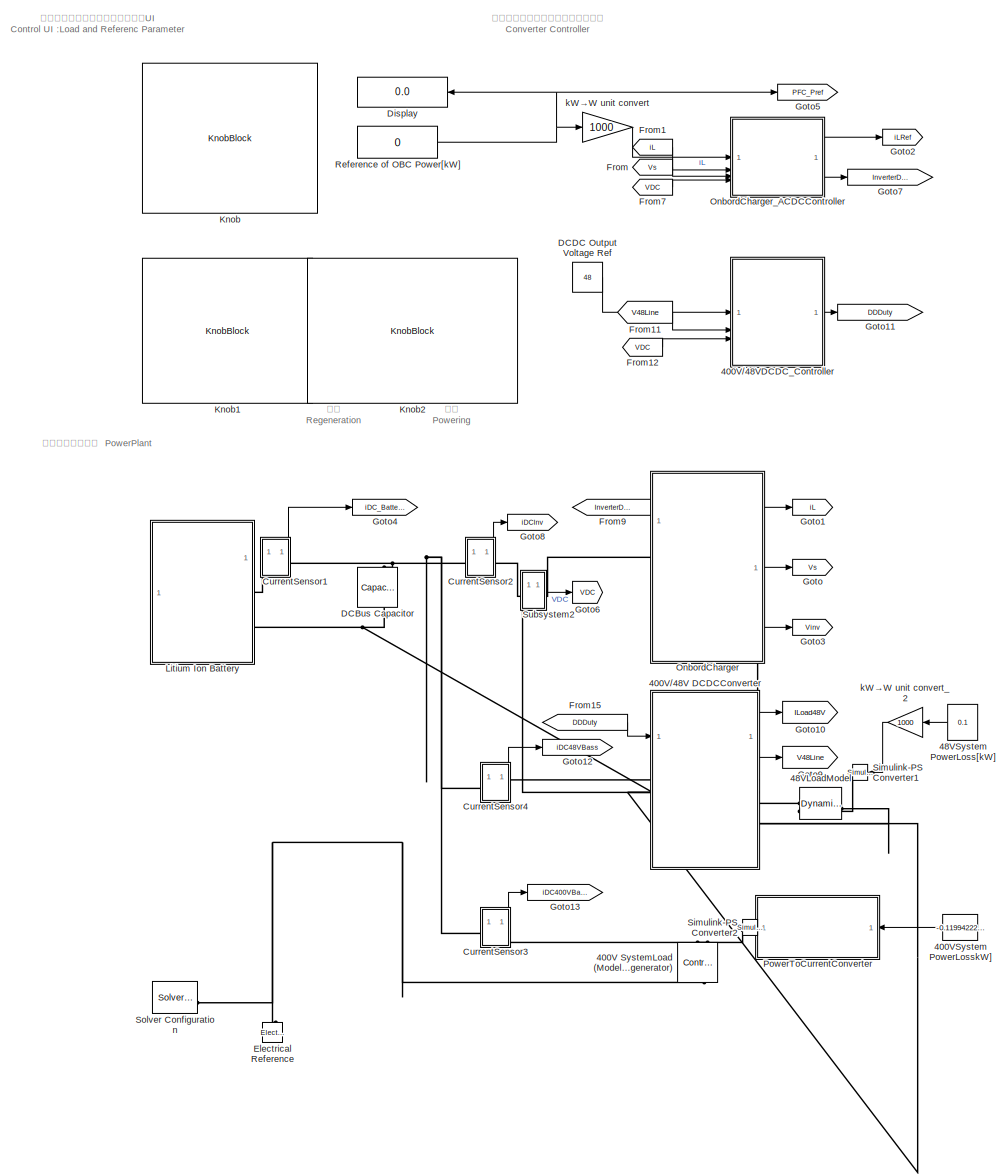
[diagram: root canvas - part 1/2, left side, full height]
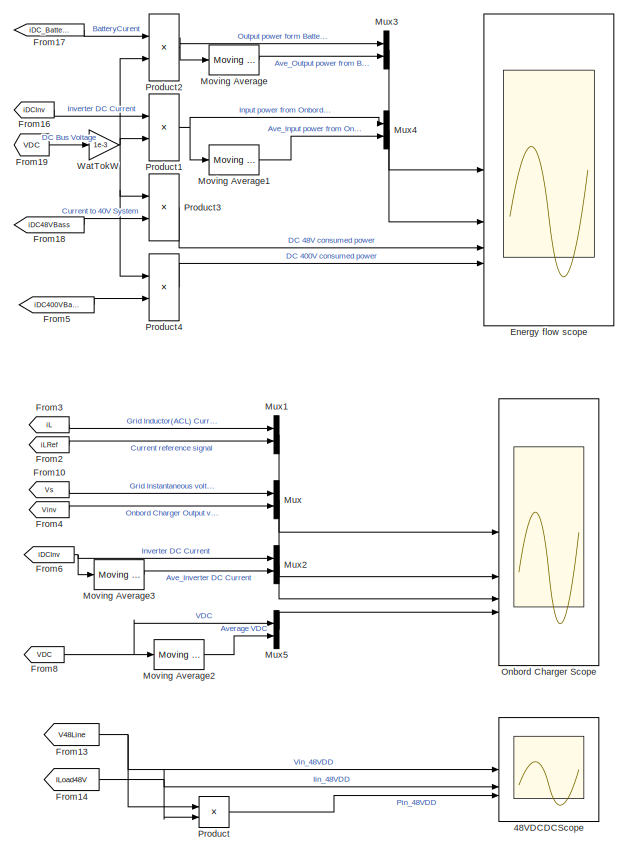
[diagram: root canvas - part 2/2, middle right region]
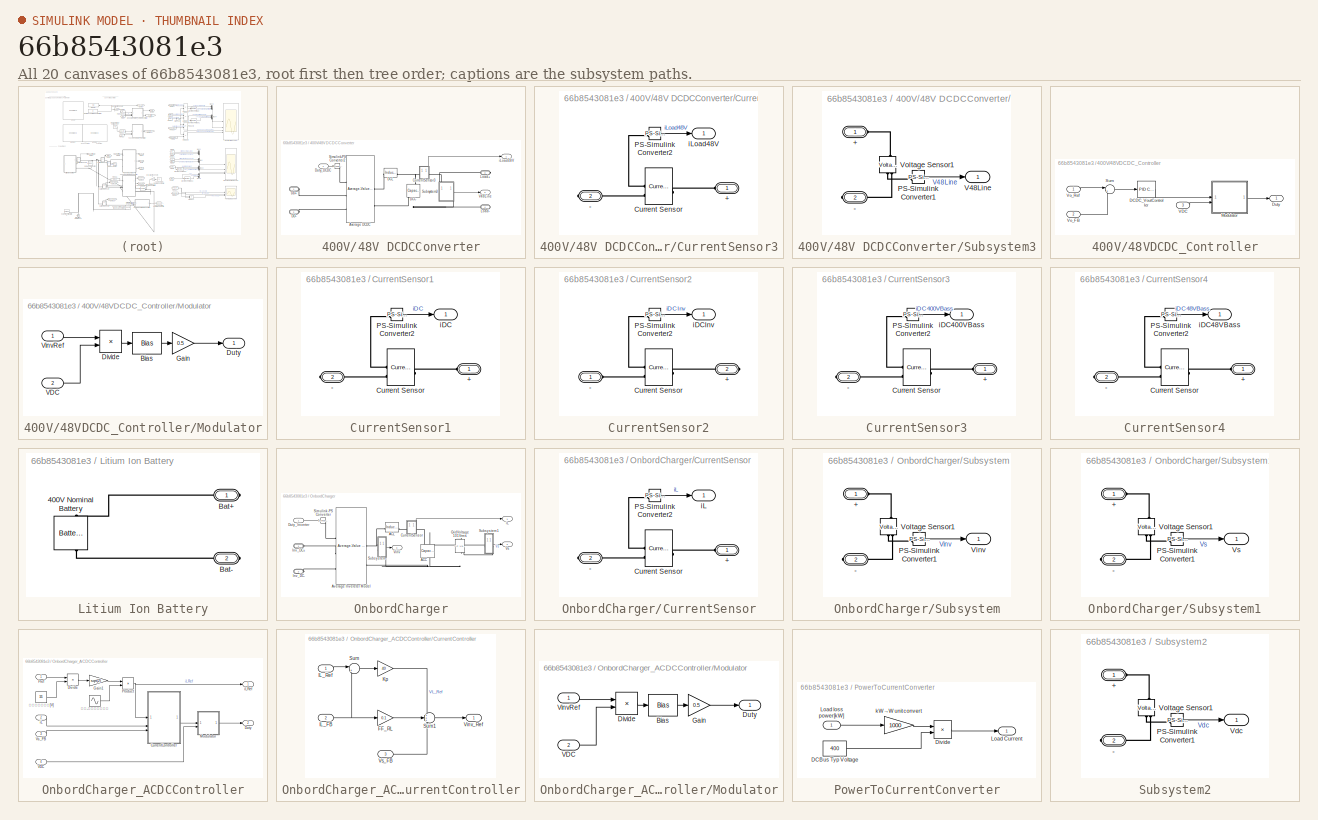
[diagram: thumbnail index - all 20 canvases of the model, root first then tree order]
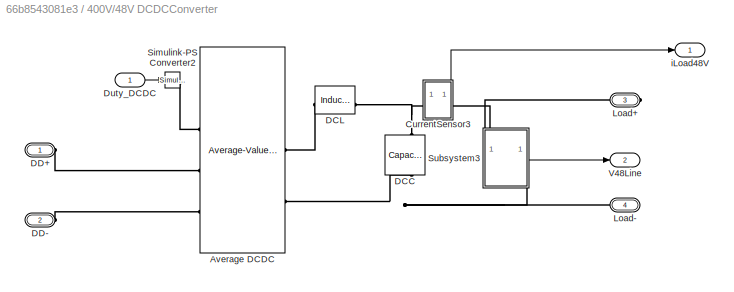
MODEL slx_66b8543081e3
KIND model
CONFIG AbsTol = 1e-3
CONFIG EnableMultiTasking = off
CONFIG FixedStep = auto
CONFIG MaxStep = 1e-3
CONFIG MinStep = auto
CONFIG RelTol = 1e-3
CONFIG SampleTimeConstraint = Unconstrained
CONFIG SolverName = ode23t
CONFIG StartTime = 0.0
CONFIG StopTime = 20
BLOCK [Reference] 400V SystemLoad (Modeling as current generator)  REF=fl_lib/Electrical/Electrical Sources/Controlled Current
Source
  NameLocation = left
  SourceBlock = fl_lib/Electrical/Electrical Sources/Controlled Current\nSource
  SourceType = Controlled Current\nSource
BLOCK [SubSystem] 400V//48V DCDCConverter
BLOCK [Reference] 400V//48V DCDCConverter/Average DCDC  REF=ee_lib/Semiconductors &
Converters/Converters/Average-Value
Chopper
  SourceBlock = ee_lib/Semiconductors &\nConverters/Converters/Average-Value\nChopper
  SourceType = Average-Value\nChopper
BLOCK [SubSystem] 400V//48V DCDCConverter/CurrentSensor3
  PortSchema = {"entries":[{"content":{"sides":[{"content":{"connectorIds":["LConn1"]},"type":"ConnectorPlacement.EquallySpacedRectSide","uuid":"7286f59e-cee0-499d-832c-cf6f33a1b017"},{"content":{"connectorIds":["RConn1"],"side":"RIGHT"},"type":"ConnectorPlacement.EquallySpacedRectSide","uuid":"6a983281-a6bc-4a57-a5ba-c4da9a8828f4"},{"content":{"connectorIds":["Out1"],"side":"TOP"},"type":"ConnectorPlacement.Equ...<+251ch>  <repeated x6 — deduplicated; at blocks: CurrentSensor3, CurrentSensor1, CurrentSensor2, CurrentSensor4, CurrentSensor>
BLOCK [PMIOPort] 400V//48V DCDCConverter/CurrentSensor3/+
  Side = Left
BLOCK [PMIOPort] 400V//48V DCDCConverter/CurrentSensor3/-
  Port = 2
  Side = Right
BLOCK [Reference] 400V//48V DCDCConverter/CurrentSensor3/Current Sensor  REF=fl_lib/Electrical/Electrical Sensors/Current Sensor
  NameLocation = top
  SourceBlock = fl_lib/Electrical/Electrical Sensors/Current Sensor
  SourceType = Current Sensor
BLOCK [Reference] 400V//48V DCDCConverter/CurrentSensor3/PS-Simulink Converter2  REF=nesl_utility/PS-Simulink
Converter
  SourceBlock = nesl_utility/PS-Simulink\nConverter
  SourceType = PS-Simulink\nConverter
BLOCK [Outport] 400V//48V DCDCConverter/CurrentSensor3/iLoad48V
BLOCK [Reference] 400V//48V DCDCConverter/DCC  REF=ee_lib/Passive/Capacitor
  NameLocation = left
  SourceBlock = ee_lib/Passive/Capacitor
  SourceType = Capacitor
BLOCK [Reference] 400V//48V DCDCConverter/DCL  REF=ee_lib/Passive/Inductor
  SourceBlock = ee_lib/Passive/Inductor
  SourceType = Inductor
BLOCK [PMIOPort] 400V//48V DCDCConverter/DD+
  Side = Left
BLOCK [PMIOPort] 400V//48V DCDCConverter/DD-
  Port = 2
  Side = Left
BLOCK [Inport] 400V//48V DCDCConverter/Duty_DCDC
BLOCK [PMIOPort] 400V//48V DCDCConverter/Load+
  NameLocation = top
  Port = 3
  Side = Right
BLOCK [PMIOPort] 400V//48V DCDCConverter/Load-
  NameLocation = top
  Port = 4
  Side = Right
BLOCK [Reference] 400V//48V DCDCConverter/Simulink-PS Converter2  REF=nesl_utility/Simulink-PS
Converter
  SourceBlock = nesl_utility/Simulink-PS\nConverter
  SourceType = Simulink-PS\nConverter
BLOCK [SubSystem] 400V//48V DCDCConverter/Subsystem3
  PortSchema = {"entries":[{"content":{"sides":[{"content":{"connectorIds":[]},"type":"ConnectorPlacement.EquallySpacedRectSide","uuid":"7286f59e-cee0-499d-832c-cf6f33a1b017"},{"content":{"connectorIds":["Out1"],"side":"RIGHT"},"type":"ConnectorPlacement.EquallySpacedRectSide","uuid":"6a983281-a6bc-4a57-a5ba-c4da9a8828f4"},{"content":{"connectorIds":["LConn1"],"side":"TOP"},"type":"ConnectorPlacement.EquallySpac...<+395ch>  <repeated x3 — deduplicated; at blocks: Subsystem3, Subsystem, Subsystem1>
BLOCK [PMIOPort] 400V//48V DCDCConverter/Subsystem3/+
  Side = Left
BLOCK [PMIOPort] 400V//48V DCDCConverter/Subsystem3/-
  NameLocation = top
  Port = 2
  Side = Right
BLOCK [Reference] 400V//48V DCDCConverter/Subsystem3/PS-Simulink Converter1  REF=nesl_utility/PS-Simulink
Converter
  SourceBlock = nesl_utility/PS-Simulink\nConverter
  SourceType = PS-Simulink\nConverter
BLOCK [Outport] 400V//48V DCDCConverter/Subsystem3/V48Line
BLOCK [Reference] 400V//48V DCDCConverter/Subsystem3/Voltage Sensor1  REF=fl_lib/Electrical/Electrical Sensors/Voltage Sensor
  NameLocation = right
  SourceBlock = fl_lib/Electrical/Electrical Sensors/Voltage Sensor
  SourceType = Voltage Sensor
BLOCK [Outport] 400V//48V DCDCConverter/V48Line
  Port = 2
BLOCK [Outport] 400V//48V DCDCConverter/iLoad48V
BLOCK [SubSystem] 400V//48VDCDC_Controller
BLOCK [Reference] 400V//48VDCDC_Controller/DCDC_VoutController  REF=slpidlib/PID Controller
  SourceBlock = slpidlib/PID Controller
  SourceType = PID 1dof
BLOCK [Outport] 400V//48VDCDC_Controller/Duty
BLOCK [SubSystem] 400V//48VDCDC_Controller/Modulator
BLOCK [Bias] 400V//48VDCDC_Controller/Modulator/Bias
  Bias = 1
  SaturateOnIntegerOverflow = off
BLOCK [Product] 400V//48VDCDC_Controller/Modulator/Divide
  Inputs = */
BLOCK [Outport] 400V//48VDCDC_Controller/Modulator/Duty
BLOCK [Gain] 400V//48VDCDC_Controller/Modulator/Gain
  Gain = 0.5
BLOCK [Inport] 400V//48VDCDC_Controller/Modulator/VDC
  Port = 2
BLOCK [Inport] 400V//48VDCDC_Controller/Modulator/VinvRef
BLOCK [Sum] 400V//48VDCDC_Controller/Sum
  Inputs = |+-
BLOCK [Inport] 400V//48VDCDC_Controller/VDC
  Port = 3
BLOCK [Inport] 400V//48VDCDC_Controller/Vo_FB
  Port = 2
BLOCK [Inport] 400V//48VDCDC_Controller/Vo_Ref
BLOCK [Constant] 400VSystem PowerLosskW]
  NameLocation = top
  Value = -0.119942220052085
BLOCK [Scope] 48VDCDCScope
  Floating = off
  NumInputPorts = 3
  ScopeSpecificationString = Simulink.scopes.TimeScopeBlockCfg('CurrentConfiguration', extmgr.ConfigurationSet(extmgr.Configuration('Core','General UI',true),extmgr.Configuration('Core','Source UI',true),extmgr.Configuration('Sources','WiredSimulink',true,'DataLoggingVariableName','ScopeData1'),extmgr.Configuration('Visuals','Time Domain',true,'SerializedDisplays',{struct('MinYLimReal','47.67393','MaxYLimReal','50.25265','YLa...<+2915ch>
BLOCK [Reference] 48VLoadModel  REF=ee_lib/Passive/Dynamic Load
  SourceBlock = ee_lib/Passive/Dynamic Load
  SourceType = Dynamic Load
BLOCK [Constant] 48VSystem PowerLoss[kW]
  Value = 0.1
BLOCK [SubSystem] CurrentSensor1
BLOCK [PMIOPort] CurrentSensor1/+
  Side = Left
BLOCK [PMIOPort] CurrentSensor1/-
  Port = 2
  Side = Right
BLOCK [Reference] CurrentSensor1/Current Sensor  REF=fl_lib/Electrical/Electrical Sensors/Current Sensor
  NameLocation = top
  SourceBlock = fl_lib/Electrical/Electrical Sensors/Current Sensor
  SourceType = Current Sensor
BLOCK [Reference] CurrentSensor1/PS-Simulink Converter2  REF=nesl_utility/PS-Simulink
Converter
  SourceBlock = nesl_utility/PS-Simulink\nConverter
  SourceType = PS-Simulink\nConverter
BLOCK [Outport] CurrentSensor1/iDC
BLOCK [SubSystem] CurrentSensor2
BLOCK [PMIOPort] CurrentSensor2/+
  Port = 2
  Side = Right
BLOCK [PMIOPort] CurrentSensor2/-
  Side = Left
BLOCK [Reference] CurrentSensor2/Current Sensor  REF=fl_lib/Electrical/Electrical Sensors/Current Sensor
  NameLocation = top
  SourceBlock = fl_lib/Electrical/Electrical Sensors/Current Sensor
  SourceType = Current Sensor
BLOCK [Reference] CurrentSensor2/PS-Simulink Converter2  REF=nesl_utility/PS-Simulink
Converter
  SourceBlock = nesl_utility/PS-Simulink\nConverter
  SourceType = PS-Simulink\nConverter
BLOCK [Outport] CurrentSensor2/iDCInv
BLOCK [SubSystem] CurrentSensor3
BLOCK [PMIOPort] CurrentSensor3/+
  Side = Left
BLOCK [PMIOPort] CurrentSensor3/-
  Port = 2
  Side = Right
BLOCK [Reference] CurrentSensor3/Current Sensor  REF=fl_lib/Electrical/Electrical Sensors/Current Sensor
  NameLocation = top
  SourceBlock = fl_lib/Electrical/Electrical Sensors/Current Sensor
  SourceType = Current Sensor
BLOCK [Reference] CurrentSensor3/PS-Simulink Converter2  REF=nesl_utility/PS-Simulink
Converter
  SourceBlock = nesl_utility/PS-Simulink\nConverter
  SourceType = PS-Simulink\nConverter
BLOCK [Outport] CurrentSensor3/iDC400VBass
BLOCK [SubSystem] CurrentSensor4
BLOCK [PMIOPort] CurrentSensor4/+
  Side = Left
BLOCK [PMIOPort] CurrentSensor4/-
  Port = 2
  Side = Right
BLOCK [Reference] CurrentSensor4/Current Sensor  REF=fl_lib/Electrical/Electrical Sensors/Current Sensor
  NameLocation = top
  SourceBlock = fl_lib/Electrical/Electrical Sensors/Current Sensor
  SourceType = Current Sensor
BLOCK [Reference] CurrentSensor4/PS-Simulink Converter2  REF=nesl_utility/PS-Simulink
Converter
  SourceBlock = nesl_utility/PS-Simulink\nConverter
  SourceType = PS-Simulink\nConverter
BLOCK [Outport] CurrentSensor4/iDC48VBass
BLOCK [Reference] DCBus Capacitor  REF=ee_lib/Passive/Capacitor
  NameLocation = left
  SourceBlock = ee_lib/Passive/Capacitor
  SourceType = Capacitor
BLOCK [Constant] DCDC Output Voltage Ref
  Value = 48
BLOCK [Display] Display
  Decimation = 1
  NameLocation = top
BLOCK [Reference] Electrical Reference  REF=fl_lib/Electrical/Electrical Elements/Electrical Reference
  SourceBlock = fl_lib/Electrical/Electrical Elements/Electrical Reference
  SourceType = Electrical Reference
BLOCK [Scope] Energy flow scope
  Floating = off
  NumInputPorts = 4
  ScopeSpecificationString = Simulink.scopes.TimeScopeBlockCfg('CurrentConfiguration', extmgr.ConfigurationSet(extmgr.Configuration('Core','General UI',true),extmgr.Configuration('Core','Source UI',true),extmgr.Configuration('Sources','WiredSimulink',true,'DataLoggingVariableName','ScopeData2'),extmgr.Configuration('Visuals','Time Domain',true,'SerializedDisplays',{struct('MinYLimReal','-6.12494','MaxYLimReal','2.47978','YLab...<+3836ch>
BLOCK [From] From
  GotoTag = Vs
BLOCK [From] From1
  GotoTag = iL
BLOCK [From] From10
  GotoTag = Vs
BLOCK [From] From11
  GotoTag = V48Line
BLOCK [From] From12
  GotoTag = VDC
  NameLocation = top
BLOCK [From] From13
  GotoTag = V48Line
BLOCK [From] From14
  GotoTag = ILoad48V
  NameLocation = top
BLOCK [From] From15
  GotoTag = DDDuty
BLOCK [From] From16
  GotoTag = iDCInv
BLOCK [From] From17
  GotoTag = iDC_Battery
BLOCK [From] From18
  GotoTag = iDC48VBass
BLOCK [From] From19
  GotoTag = VDC
  NameLocation = top
BLOCK [From] From2
  GotoTag = iLRef
BLOCK [From] From3
  GotoTag = iL
BLOCK [From] From4
  GotoTag = Vinv
BLOCK [From] From5
  GotoTag = iDC400VBass
BLOCK [From] From6
  GotoTag = iDCInv
BLOCK [From] From7
  GotoTag = VDC
BLOCK [From] From8
  GotoTag = VDC
BLOCK [From] From9
  GotoTag = InverterDuty
BLOCK [Goto] Goto
  GotoTag = Vs
BLOCK [Goto] Goto1
  GotoTag = iL
BLOCK [Goto] Goto10
  GotoTag = ILoad48V
BLOCK [Goto] Goto11
  GotoTag = DDDuty
BLOCK [Goto] Goto12
  GotoTag = iDC48VBass
BLOCK [Goto] Goto13
  GotoTag = iDC400VBass
BLOCK [Goto] Goto2
  GotoTag = iLRef
BLOCK [Goto] Goto3
  GotoTag = Vinv
BLOCK [Goto] Goto4
  GotoTag = iDC_Battery
BLOCK [Goto] Goto5
  GotoTag = PFC_Pref
BLOCK [Goto] Goto6
  GotoTag = VDC
BLOCK [Goto] Goto7
  GotoTag = InverterDuty
BLOCK [Goto] Goto8
  GotoTag = iDCInv
BLOCK [Goto] Goto9
  GotoTag = V48Line
BLOCK [KnobBlock] Knob
  ScaleMax = 3
BLOCK [KnobBlock] Knob1
  ScaleMax = 2
  ScaleMin = 0.1
BLOCK [KnobBlock] Knob2
  ScaleMax = 20
  ScaleMin = -20
  TickInterval = 2
BLOCK [SubSystem] Litium Ion Battery
BLOCK [Reference] Litium Ion Battery/400V Nominal Battery  REF=batteryecm_lib/Battery
  NameLocation = left
  SourceBlock = batteryecm_lib/Battery
  SourceType = Battery
BLOCK [PMIOPort] Litium Ion Battery/Bat+
  Side = Right
BLOCK [PMIOPort] Litium Ion Battery/Bat-
  Port = 2
  Side = Right
BLOCK [Reference] Moving Average  REF=eeGeneralControl/Moving Average
  SourceBlock = eeGeneralControl/Moving Average
  SourceType = Moving Average
BLOCK [Reference] Moving Average1  REF=eeGeneralControl/Moving Average
  SourceBlock = eeGeneralControl/Moving Average
  SourceType = Moving Average
BLOCK [Reference] Moving Average2  REF=eeGeneralControl/Moving Average
  SourceBlock = eeGeneralControl/Moving Average
  SourceType = Moving Average
BLOCK [Reference] Moving Average3  REF=eeGeneralControl/Moving Average
  SourceBlock = eeGeneralControl/Moving Average
  SourceType = Moving Average
BLOCK [Mux] Mux
  DisplayOption = bar
  Inputs = 2
BLOCK [Mux] Mux1
  DisplayOption = bar
  Inputs = 2
BLOCK [Mux] Mux2
  DisplayOption = bar
  Inputs = 2
BLOCK [Mux] Mux3
  DisplayOption = bar
  Inputs = 2
BLOCK [Mux] Mux4
  DisplayOption = bar
  Inputs = 2
BLOCK [Mux] Mux5
  DisplayOption = bar
  Inputs = 2
BLOCK [Scope] Onbord Charger Scope
  Floating = off
  NumInputPorts = 4
  ScopeSpecificationString = Simulink.scopes.TimeScopeBlockCfg('CurrentConfiguration', extmgr.ConfigurationSet(extmgr.Configuration('Core','General UI',true),extmgr.Configuration('Core','Source UI',true),extmgr.Configuration('Sources','WiredSimulink',true),extmgr.Configuration('Visuals','Time Domain',true,'SerializedDisplays',{struct('MinYLimReal','-47.36568','MaxYLimReal','47.36568','YLabelReal','','MinYLimMag','0.00000','Ma...<+3710ch>
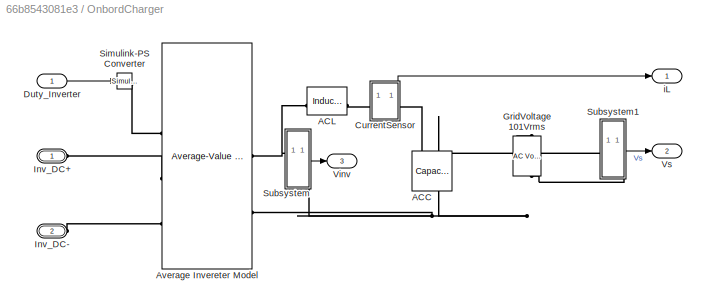
BLOCK [SubSystem] OnbordCharger
BLOCK [Reference] OnbordCharger/ACC  REF=ee_lib/Passive/Capacitor
  NameLocation = right
  SourceBlock = ee_lib/Passive/Capacitor
  SourceType = Capacitor
BLOCK [Reference] OnbordCharger/ACL  REF=ee_lib/Passive/Inductor
  SourceBlock = ee_lib/Passive/Inductor
  SourceType = Inductor
BLOCK [Reference] OnbordCharger/Average Invereter Model  REF=ee_lib/Semiconductors &
Converters/Converters/Average-Value
Chopper
  SourceBlock = ee_lib/Semiconductors &\nConverters/Converters/Average-Value\nChopper
  SourceType = Average-Value\nChopper
BLOCK [SubSystem] OnbordCharger/CurrentSensor
BLOCK [PMIOPort] OnbordCharger/CurrentSensor/+
  Side = Left
BLOCK [PMIOPort] OnbordCharger/CurrentSensor/-
  Port = 2
  Side = Right
BLOCK [Reference] OnbordCharger/CurrentSensor/Current Sensor  REF=fl_lib/Electrical/Electrical Sensors/Current Sensor
  NameLocation = top
  SourceBlock = fl_lib/Electrical/Electrical Sensors/Current Sensor
  SourceType = Current Sensor
BLOCK [Reference] OnbordCharger/CurrentSensor/PS-Simulink Converter2  REF=nesl_utility/PS-Simulink
Converter
  SourceBlock = nesl_utility/PS-Simulink\nConverter
  SourceType = PS-Simulink\nConverter
BLOCK [Outport] OnbordCharger/CurrentSensor/iL
BLOCK [Inport] OnbordCharger/Duty_Inverter
BLOCK [Reference] OnbordCharger/GridVoltage 101Vrms  REF=fl_lib/Electrical/Electrical Sources/AC Voltage Source
  NameLocation = right
  SourceBlock = fl_lib/Electrical/Electrical Sources/AC Voltage Source
  SourceType = AC Voltage Source
BLOCK [PMIOPort] OnbordCharger/Inv_DC+
  Side = Left
BLOCK [PMIOPort] OnbordCharger/Inv_DC-
  Port = 2
  Side = Left
BLOCK [Reference] OnbordCharger/Simulink-PS Converter  REF=nesl_utility/Simulink-PS
Converter
  SourceBlock = nesl_utility/Simulink-PS\nConverter
  SourceType = Simulink-PS\nConverter
BLOCK [SubSystem] OnbordCharger/Subsystem
BLOCK [PMIOPort] OnbordCharger/Subsystem/+
  Side = Left
BLOCK [PMIOPort] OnbordCharger/Subsystem/-
  NameLocation = top
  Port = 2
  Side = Right
BLOCK [Reference] OnbordCharger/Subsystem/PS-Simulink Converter1  REF=nesl_utility/PS-Simulink
Converter
  SourceBlock = nesl_utility/PS-Simulink\nConverter
  SourceType = PS-Simulink\nConverter
BLOCK [Outport] OnbordCharger/Subsystem/Vinv
BLOCK [Reference] OnbordCharger/Subsystem/Voltage Sensor1  REF=fl_lib/Electrical/Electrical Sensors/Voltage Sensor
  NameLocation = right
  SourceBlock = fl_lib/Electrical/Electrical Sensors/Voltage Sensor
  SourceType = Voltage Sensor
BLOCK [SubSystem] OnbordCharger/Subsystem1
BLOCK [PMIOPort] OnbordCharger/Subsystem1/+
  Side = Left
BLOCK [PMIOPort] OnbordCharger/Subsystem1/-
  NameLocation = top
  Port = 2
  Side = Right
BLOCK [Reference] OnbordCharger/Subsystem1/PS-Simulink Converter1  REF=nesl_utility/PS-Simulink
Converter
  SourceBlock = nesl_utility/PS-Simulink\nConverter
  SourceType = PS-Simulink\nConverter
BLOCK [Reference] OnbordCharger/Subsystem1/Voltage Sensor1  REF=fl_lib/Electrical/Electrical Sensors/Voltage Sensor
  NameLocation = right
  SourceBlock = fl_lib/Electrical/Electrical Sensors/Voltage Sensor
  SourceType = Voltage Sensor
BLOCK [Outport] OnbordCharger/Subsystem1/Vs
BLOCK [Outport] OnbordCharger/Vinv
  Port = 3
BLOCK [Outport] OnbordCharger/Vs
  Port = 2
BLOCK [Outport] OnbordCharger/iL
BLOCK [SubSystem] OnbordCharger_ACDCController
BLOCK [SubSystem] OnbordCharger_ACDCController/CurrentController
BLOCK [Gain] OnbordCharger_ACDCController/CurrentController/FF_RL
  Gain = 0.1
BLOCK [Inport] OnbordCharger_ACDCController/CurrentController/IL_FB
  Port = 2
BLOCK [Inport] OnbordCharger_ACDCController/CurrentController/IL_Ref
BLOCK [Gain] OnbordCharger_ACDCController/CurrentController/Kp
  Gain = 40
BLOCK [Sum] OnbordCharger_ACDCController/CurrentController/Sum
  Inputs = |+-
BLOCK [Sum] OnbordCharger_ACDCController/CurrentController/Sum1
  Inputs = +++
BLOCK [Outport] OnbordCharger_ACDCController/CurrentController/Vinv_Ref
BLOCK [Inport] OnbordCharger_ACDCController/CurrentController/Vs_FB
  Port = 3
BLOCK [Product] OnbordCharger_ACDCController/Divide
  Inputs = */
BLOCK [Outport] OnbordCharger_ACDCController/Duty
  Port = 2
BLOCK [Gain] OnbordCharger_ACDCController/Gain1
  Gain = sqrt(2)
BLOCK [SubSystem] OnbordCharger_ACDCController/Modulator
BLOCK [Bias] OnbordCharger_ACDCController/Modulator/Bias
  Bias = 1
  SaturateOnIntegerOverflow = off
BLOCK [Product] OnbordCharger_ACDCController/Modulator/Divide
  Inputs = */
BLOCK [Outport] OnbordCharger_ACDCController/Modulator/Duty
BLOCK [Gain] OnbordCharger_ACDCController/Modulator/Gain
  Gain = 0.5
BLOCK [Inport] OnbordCharger_ACDCController/Modulator/VDC
  Port = 2
BLOCK [Inport] OnbordCharger_ACDCController/Modulator/VinvRef
BLOCK [Inport] OnbordCharger_ACDCController/Pref
BLOCK [Product] OnbordCharger_ACDCController/Product
BLOCK [Inport] OnbordCharger_ACDCController/VDC
  Port = 4
BLOCK [Inport] OnbordCharger_ACDCController/Vs_FB
  Port = 3
BLOCK [Inport] OnbordCharger_ACDCController/iL
  Port = 2
BLOCK [Outport] OnbordCharger_ACDCController/iLRef
BLOCK [Sin] OnbordCharger_ACDCController/振幅-１の基準正弦波
  Amplitude = -1
  Frequency = 2*pi*60
  SampleTime = 0
BLOCK [Constant] OnbordCharger_ACDCController/系統電圧実効値[V]
  Value = 101
BLOCK [SubSystem] PowerToCurrentConverter
BLOCK [Constant] PowerToCurrentConverter/DCBus Typ Voltage
  Value = 400
BLOCK [Product] PowerToCurrentConverter/Divide
  Inputs = */
BLOCK [Outport] PowerToCurrentConverter/Load Current
  NameLocation = top
BLOCK [Inport] PowerToCurrentConverter/Load loss power[kW]
  NameLocation = top
BLOCK [Gain] PowerToCurrentConverter/kW→W unit convert
  Gain = 1000
  NameLocation = top
BLOCK [Product] Product
BLOCK [Product] Product1
BLOCK [Product] Product2
BLOCK [Product] Product3
BLOCK [Product] Product4
BLOCK [Constant] Reference of OBC Power[kW]
  Value = 0
BLOCK [Reference] Simulink-PS Converter1  REF=nesl_utility/Simulink-PS
Converter
  NameLocation = top
  SourceBlock = nesl_utility/Simulink-PS\nConverter
  SourceType = Simulink-PS\nConverter
BLOCK [Reference] Simulink-PS Converter2  REF=nesl_utility/Simulink-PS
Converter
  NameLocation = top
  SourceBlock = nesl_utility/Simulink-PS\nConverter
  SourceType = Simulink-PS\nConverter
BLOCK [Reference] Solver Configuration  REF=nesl_utility/Solver
Configuration
  SourceBlock = nesl_utility/Solver\nConfiguration
  SourceType = Solver\nConfiguration
BLOCK [SubSystem] Subsystem2
  PortSchema = {"entries":[{"content":{"sides":[{"content":{"connectorIds":["Out1"]},"type":"ConnectorPlacement.EquallySpacedRectSide","uuid":"7286f59e-cee0-499d-832c-cf6f33a1b017"},{"content":{"connectorIds":[],"side":"RIGHT"},"type":"ConnectorPlacement.EquallySpacedRectSide","uuid":"6a983281-a6bc-4a57-a5ba-c4da9a8828f4"},{"content":{"connectorIds":["LConn1"],"side":"TOP"},"type":"ConnectorPlacement.EquallySpac...<+395ch>
BLOCK [PMIOPort] Subsystem2/+
  Side = Left
BLOCK [PMIOPort] Subsystem2/-
  NameLocation = top
  Port = 2
  Side = Right
BLOCK [Reference] Subsystem2/PS-Simulink Converter1  REF=nesl_utility/PS-Simulink
Converter
  SourceBlock = nesl_utility/PS-Simulink\nConverter
  SourceType = PS-Simulink\nConverter
BLOCK [Outport] Subsystem2/Vdc
BLOCK [Reference] Subsystem2/Voltage Sensor1  REF=fl_lib/Electrical/Electrical Sensors/Voltage Sensor
  NameLocation = right
  SourceBlock = fl_lib/Electrical/Electrical Sensors/Voltage Sensor
  SourceType = Voltage Sensor
BLOCK [Gain] WatTokW
  Gain = 1e-3
BLOCK [Gain] kW→W unit convert
  Gain = 1000
  NameLocation = top
BLOCK [Gain] kW→W unit convert_2
  Gain = 1000
  NameLocation = top
ANNOTATION (root): 力行 Powering
ANNOTATION (root): 回生 Regeneration
ANNOTATION (root): 負荷・指令電力等パラメータ変更UI Control UI :Load and Referenc Parameter
ANNOTATION (root): 電力供給システム PowerPlant
ANNOTATION (root): 電力供給システム電力コントローラ Converter Controller
LINE 400V//48V DCDCConverter/CurrentSensor3/PS-Simulink Converter2:1 -> 400V//48V DCDCConverter/CurrentSensor3/iLoad48V:1
LINE 400V//48V DCDCConverter/CurrentSensor3:1 -> 400V//48V DCDCConverter/iLoad48V:1
LINE 400V//48V DCDCConverter/Duty_DCDC:1 -> 400V//48V DCDCConverter/Simulink-PS Converter2:1
LINE 400V//48V DCDCConverter/Subsystem3/PS-Simulink Converter1:1 -> 400V//48V DCDCConverter/Subsystem3/V48Line:1
LINE 400V//48V DCDCConverter/Subsystem3:1 -> 400V//48V DCDCConverter/V48Line:1
LINE 400V//48V DCDCConverter:1 -> Goto10:1
LINE 400V//48V DCDCConverter:2 -> Goto9:1
LINE 400V//48VDCDC_Controller/DCDC_VoutController:1 -> 400V//48VDCDC_Controller/Modulator:1
LINE 400V//48VDCDC_Controller/Modulator/Bias:1 -> 400V//48VDCDC_Controller/Modulator/Gain:1
LINE 400V//48VDCDC_Controller/Modulator/Divide:1 -> 400V//48VDCDC_Controller/Modulator/Bias:1
LINE 400V//48VDCDC_Controller/Modulator/Gain:1 -> 400V//48VDCDC_Controller/Modulator/Duty:1
LINE 400V//48VDCDC_Controller/Modulator/VDC:1 -> 400V//48VDCDC_Controller/Modulator/Divide:2
LINE 400V//48VDCDC_Controller/Modulator/VinvRef:1 -> 400V//48VDCDC_Controller/Modulator/Divide:1
LINE 400V//48VDCDC_Controller/Modulator:1 -> 400V//48VDCDC_Controller/Duty:1
LINE 400V//48VDCDC_Controller/Sum:1 -> 400V//48VDCDC_Controller/DCDC_VoutController:1
LINE 400V//48VDCDC_Controller/VDC:1 -> 400V//48VDCDC_Controller/Modulator:2
LINE 400V//48VDCDC_Controller/Vo_FB:1 -> 400V//48VDCDC_Controller/Sum:2
LINE 400V//48VDCDC_Controller/Vo_Ref:1 -> 400V//48VDCDC_Controller/Sum:1
LINE 400V//48VDCDC_Controller:1 -> Goto11:1
LINE 400VSystem PowerLosskW]:1 -> PowerToCurrentConverter:1
LINE 48VSystem PowerLoss[kW]:1 -> kW→W unit convert_2:1
LINE CurrentSensor1/PS-Simulink Converter2:1 -> CurrentSensor1/iDC:1
LINE CurrentSensor1:1 -> Goto4:1
LINE CurrentSensor2/PS-Simulink Converter2:1 -> CurrentSensor2/iDCInv:1
LINE CurrentSensor2:1 -> Goto8:1
LINE CurrentSensor3/PS-Simulink Converter2:1 -> CurrentSensor3/iDC400VBass:1
LINE CurrentSensor3:1 -> Goto13:1
LINE CurrentSensor4/PS-Simulink Converter2:1 -> CurrentSensor4/iDC48VBass:1
LINE CurrentSensor4:1 -> Goto12:1
LINE DCDC Output Voltage Ref:1 -> 400V//48VDCDC_Controller:1
LINE From10:1 -> Mux:1
LINE From11:1 -> 400V//48VDCDC_Controller:2
LINE From12:1 -> 400V//48VDCDC_Controller:3
NET From13:1 -> 48VDCDCScope:1, Product:1
NET From14:1 -> 48VDCDCScope:2, Product:2
LINE From15:1 -> 400V//48V DCDCConverter:1
LINE From16:1 -> Product1:1
LINE From17:1 -> Product2:1
LINE From18:1 -> Product3:2
LINE From19:1 -> WatTokW:1
LINE From1:1 -> OnbordCharger_ACDCController:2
LINE From2:1 -> Mux1:2
LINE From3:1 -> Mux1:1
LINE From4:1 -> Mux:2
LINE From5:1 -> Product4:2
NET From6:1 -> Moving Average3:1, Mux2:1
LINE From7:1 -> OnbordCharger_ACDCController:4
NET From8:1 -> Moving Average2:1, Mux5:1
LINE From9:1 -> OnbordCharger:1
LINE From:1 -> OnbordCharger_ACDCController:3
LINE Moving Average1:1 -> Mux4:2
LINE Moving Average2:1 -> Mux5:2
LINE Moving Average3:1 -> Mux2:2
LINE Moving Average:1 -> Mux3:2
LINE Mux1:1 -> Onbord Charger Scope:1
LINE Mux2:1 -> Onbord Charger Scope:3
LINE Mux3:1 -> Energy flow scope:1
LINE Mux4:1 -> Energy flow scope:2
LINE Mux5:1 -> Onbord Charger Scope:4
LINE Mux:1 -> Onbord Charger Scope:2
LINE OnbordCharger/CurrentSensor/PS-Simulink Converter2:1 -> OnbordCharger/CurrentSensor/iL:1
LINE OnbordCharger/CurrentSensor:1 -> OnbordCharger/iL:1
LINE OnbordCharger/Duty_Inverter:1 -> OnbordCharger/Simulink-PS Converter:1
LINE OnbordCharger/Subsystem/PS-Simulink Converter1:1 -> OnbordCharger/Subsystem/Vinv:1
LINE OnbordCharger/Subsystem1/PS-Simulink Converter1:1 -> OnbordCharger/Subsystem1/Vs:1
LINE OnbordCharger/Subsystem1:1 -> OnbordCharger/Vs:1
LINE OnbordCharger/Subsystem:1 -> OnbordCharger/Vinv:1
LINE OnbordCharger:1 -> Goto1:1
LINE OnbordCharger:2 -> Goto:1
LINE OnbordCharger:3 -> Goto3:1
LINE OnbordCharger_ACDCController/CurrentController/FF_RL:1 -> OnbordCharger_ACDCController/CurrentController/Sum1:2
NET OnbordCharger_ACDCController/CurrentController/IL_FB:1 -> OnbordCharger_ACDCController/CurrentController/FF_RL:1, OnbordCharger_ACDCController/CurrentController/Sum:2
LINE OnbordCharger_ACDCController/CurrentController/IL_Ref:1 -> OnbordCharger_ACDCController/CurrentController/Sum:1
LINE OnbordCharger_ACDCController/CurrentController/Kp:1 -> OnbordCharger_ACDCController/CurrentController/Sum1:1
LINE OnbordCharger_ACDCController/CurrentController/Sum1:1 -> OnbordCharger_ACDCController/CurrentController/Vinv_Ref:1
LINE OnbordCharger_ACDCController/CurrentController/Sum:1 -> OnbordCharger_ACDCController/CurrentController/Kp:1
LINE OnbordCharger_ACDCController/CurrentController/Vs_FB:1 -> OnbordCharger_ACDCController/CurrentController/Sum1:3
LINE OnbordCharger_ACDCController/CurrentController:1 -> OnbordCharger_ACDCController/Modulator:1
LINE OnbordCharger_ACDCController/Divide:1 -> OnbordCharger_ACDCController/Gain1:1
LINE OnbordCharger_ACDCController/Gain1:1 -> OnbordCharger_ACDCController/Product:1
LINE OnbordCharger_ACDCController/Modulator/Bias:1 -> OnbordCharger_ACDCController/Modulator/Gain:1
LINE OnbordCharger_ACDCController/Modulator/Divide:1 -> OnbordCharger_ACDCController/Modulator/Bias:1
LINE OnbordCharger_ACDCController/Modulator/Gain:1 -> OnbordCharger_ACDCController/Modulator/Duty:1
LINE OnbordCharger_ACDCController/Modulator/VDC:1 -> OnbordCharger_ACDCController/Modulator/Divide:2
LINE OnbordCharger_ACDCController/Modulator/VinvRef:1 -> OnbordCharger_ACDCController/Modulator/Divide:1
LINE OnbordCharger_ACDCController/Modulator:1 -> OnbordCharger_ACDCController/Duty:1
LINE OnbordCharger_ACDCController/Pref:1 -> OnbordCharger_ACDCController/Divide:1
NET OnbordCharger_ACDCController/Product:1 -> OnbordCharger_ACDCController/CurrentController:1, OnbordCharger_ACDCController/iLRef:1
LINE OnbordCharger_ACDCController/VDC:1 -> OnbordCharger_ACDCController/Modulator:2
LINE OnbordCharger_ACDCController/Vs_FB:1 -> OnbordCharger_ACDCController/CurrentController:3
LINE OnbordCharger_ACDCController/iL:1 -> OnbordCharger_ACDCController/CurrentController:2
LINE OnbordCharger_ACDCController/振幅-１の基準正弦波:1 -> OnbordCharger_ACDCController/Product:2
LINE OnbordCharger_ACDCController/系統電圧実効値[V]:1 -> OnbordCharger_ACDCController/Divide:2
LINE OnbordCharger_ACDCController:1 -> Goto2:1
LINE OnbordCharger_ACDCController:2 -> Goto7:1
LINE PowerToCurrentConverter/DCBus Typ Voltage:1 -> PowerToCurrentConverter/Divide:2
LINE PowerToCurrentConverter/Divide:1 -> PowerToCurrentConverter/Load Current:1
LINE PowerToCurrentConverter/Load loss power[kW]:1 -> PowerToCurrentConverter/kW→W unit convert:1
LINE PowerToCurrentConverter/kW→W unit convert:1 -> PowerToCurrentConverter/Divide:1
LINE PowerToCurrentConverter:1 -> Simulink-PS Converter2:1
NET Product1:1 -> Moving Average1:1, Mux4:1
NET Product2:1 -> Moving Average:1, Mux3:1
LINE Product3:1 -> Energy flow scope:3
LINE Product4:1 -> Energy flow scope:4
LINE Product:1 -> 48VDCDCScope:3
NET Reference of OBC Power[kW]:1 -> Display:1, Goto5:1, kW→W unit convert:1
LINE Subsystem2/PS-Simulink Converter1:1 -> Subsystem2/Vdc:1
LINE Subsystem2:1 -> Goto6:1
NET WatTokW:1 -> Product1:2, Product2:2, Product3:1, Product4:1
LINE kW→W unit convert:1 -> OnbordCharger_ACDCController:1
LINE kW→W unit convert_2:1 -> Simulink-PS Converter1:1
PNET net1: 400V SystemLoad (Modeling as current generator):LConn1 -- 400V//48V DCDCConverter:LConn2 -- DCBus Capacitor:RConn1 -- Electrical Reference:LConn1 -- Litium Ion Battery:RConn2 -- OnbordCharger:LConn2 -- Solver Configuration:RConn1 -- Subsystem2:RConn1
PLINE 400V SystemLoad (Modeling as current generator):RConn1 -- Simulink-PS Converter2:RConn1
PLINE 400V SystemLoad (Modeling as current generator):RConn2 -- CurrentSensor3:RConn1
PLINE 400V//48V DCDCConverter/Average DCDC:LConn1 -- 400V//48V DCDCConverter/Simulink-PS Converter2:RConn1
PLINE 400V//48V DCDCConverter/Average DCDC:LConn2 -- 400V//48V DCDCConverter/DD+:RConn1
PLINE 400V//48V DCDCConverter/Average DCDC:LConn3 -- 400V//48V DCDCConverter/DD-:RConn1
PLINE 400V//48V DCDCConverter/Average DCDC:RConn1 -- 400V//48V DCDCConverter/DCL:LConn1
PNET net2: 400V//48V DCDCConverter/Average DCDC:RConn2 -- 400V//48V DCDCConverter/DCC:RConn1 -- 400V//48V DCDCConverter/Load-:RConn1 -- 400V//48V DCDCConverter/Subsystem3:RConn1
PLINE 400V//48V DCDCConverter/CurrentSensor3/+:RConn1 -- 400V//48V DCDCConverter/CurrentSensor3/Current Sensor:LConn1
PLINE 400V//48V DCDCConverter/CurrentSensor3/-:RConn1 -- 400V//48V DCDCConverter/CurrentSensor3/Current Sensor:RConn2
PLINE 400V//48V DCDCConverter/CurrentSensor3/Current Sensor:RConn1 -- 400V//48V DCDCConverter/CurrentSensor3/PS-Simulink Converter2:LConn1
PNET net3: 400V//48V DCDCConverter/CurrentSensor3:LConn1 -- 400V//48V DCDCConverter/DCC:LConn1 -- 400V//48V DCDCConverter/DCL:RConn1
PNET net4: 400V//48V DCDCConverter/CurrentSensor3:RConn1 -- 400V//48V DCDCConverter/Load+:RConn1 -- 400V//48V DCDCConverter/Subsystem3:LConn1
PLINE 400V//48V DCDCConverter/Subsystem3/+:RConn1 -- 400V//48V DCDCConverter/Subsystem3/Voltage Sensor1:LConn1
PLINE 400V//48V DCDCConverter/Subsystem3/-:RConn1 -- 400V//48V DCDCConverter/Subsystem3/Voltage Sensor1:RConn2
PLINE 400V//48V DCDCConverter/Subsystem3/PS-Simulink Converter1:LConn1 -- 400V//48V DCDCConverter/Subsystem3/Voltage Sensor1:RConn1
PLINE 400V//48V DCDCConverter:LConn1 -- CurrentSensor4:RConn1
PLINE 400V//48V DCDCConverter:RConn1 -- 48VLoadModel:LConn1
PLINE 400V//48V DCDCConverter:RConn2 -- 48VLoadModel:RConn1
PLINE 48VLoadModel:LConn2 -- Simulink-PS Converter1:RConn1
PLINE CurrentSensor1/+:RConn1 -- CurrentSensor1/Current Sensor:LConn1
PLINE CurrentSensor1/-:RConn1 -- CurrentSensor1/Current Sensor:RConn2
PLINE CurrentSensor1/Current Sensor:RConn1 -- CurrentSensor1/PS-Simulink Converter2:LConn1
PLINE CurrentSensor1:LConn1 -- Litium Ion Battery:RConn1
PNET net5: CurrentSensor1:RConn1 -- CurrentSensor2:LConn1 -- CurrentSensor3:LConn1 -- CurrentSensor4:LConn1 -- DCBus Capacitor:LConn1
PLINE CurrentSensor2/+:RConn1 -- CurrentSensor2/Current Sensor:LConn1
PLINE CurrentSensor2/-:RConn1 -- CurrentSensor2/Current Sensor:RConn2
PLINE CurrentSensor2/Current Sensor:RConn1 -- CurrentSensor2/PS-Simulink Converter2:LConn1
PNET net6: CurrentSensor2:RConn1 -- OnbordCharger:LConn1 -- Subsystem2:LConn1
PLINE CurrentSensor3/+:RConn1 -- CurrentSensor3/Current Sensor:LConn1
PLINE CurrentSensor3/-:RConn1 -- CurrentSensor3/Current Sensor:RConn2
PLINE CurrentSensor3/Current Sensor:RConn1 -- CurrentSensor3/PS-Simulink Converter2:LConn1
PLINE CurrentSensor4/+:RConn1 -- CurrentSensor4/Current Sensor:LConn1
PLINE CurrentSensor4/-:RConn1 -- CurrentSensor4/Current Sensor:RConn2
PLINE CurrentSensor4/Current Sensor:RConn1 -- CurrentSensor4/PS-Simulink Converter2:LConn1
PLINE Litium Ion Battery/400V Nominal Battery:LConn1 -- Litium Ion Battery/Bat+:RConn1
PLINE Litium Ion Battery/400V Nominal Battery:RConn1 -- Litium Ion Battery/Bat-:RConn1
PNET net7: OnbordCharger/ACC:LConn1 -- OnbordCharger/CurrentSensor:RConn1 -- OnbordCharger/GridVoltage 101Vrms:LConn1 -- OnbordCharger/Subsystem1:LConn1
PNET net8: OnbordCharger/ACC:RConn1 -- OnbordCharger/Average Invereter Model:RConn2 -- OnbordCharger/GridVoltage 101Vrms:RConn1 -- OnbordCharger/Subsystem1:RConn1 -- OnbordCharger/Subsystem:RConn1
PNET net9: OnbordCharger/ACL:LConn1 -- OnbordCharger/Average Invereter Model:RConn1 -- OnbordCharger/Subsystem:LConn1
PLINE OnbordCharger/ACL:RConn1 -- OnbordCharger/CurrentSensor:LConn1
PLINE OnbordCharger/Average Invereter Model:LConn1 -- OnbordCharger/Simulink-PS Converter:RConn1
PLINE OnbordCharger/Average Invereter Model:LConn2 -- OnbordCharger/Inv_DC+:RConn1
PLINE OnbordCharger/Average Invereter Model:LConn3 -- OnbordCharger/Inv_DC-:RConn1
PLINE OnbordCharger/CurrentSensor/+:RConn1 -- OnbordCharger/CurrentSensor/Current Sensor:LConn1
PLINE OnbordCharger/CurrentSensor/-:RConn1 -- OnbordCharger/CurrentSensor/Current Sensor:RConn2
PLINE OnbordCharger/CurrentSensor/Current Sensor:RConn1 -- OnbordCharger/CurrentSensor/PS-Simulink Converter2:LConn1
PLINE OnbordCharger/Subsystem/+:RConn1 -- OnbordCharger/Subsystem/Voltage Sensor1:LConn1
PLINE OnbordCharger/Subsystem/-:RConn1 -- OnbordCharger/Subsystem/Voltage Sensor1:RConn2
PLINE OnbordCharger/Subsystem/PS-Simulink Converter1:LConn1 -- OnbordCharger/Subsystem/Voltage Sensor1:RConn1
PLINE OnbordCharger/Subsystem1/+:RConn1 -- OnbordCharger/Subsystem1/Voltage Sensor1:LConn1
PLINE OnbordCharger/Subsystem1/-:RConn1 -- OnbordCharger/Subsystem1/Voltage Sensor1:RConn2
PLINE OnbordCharger/Subsystem1/PS-Simulink Converter1:LConn1 -- OnbordCharger/Subsystem1/Voltage Sensor1:RConn1
PLINE Subsystem2/+:RConn1 -- Subsystem2/Voltage Sensor1:LConn1
PLINE Subsystem2/-:RConn1 -- Subsystem2/Voltage Sensor1:RConn2
PLINE Subsystem2/PS-Simulink Converter1:LConn1 -- Subsystem2/Voltage Sensor1:RConn1
note: NET lines group one-source signal fan-out (src -> all destinations, sorted); 1:1 wires keep LINE; PNET lines group multi-terminal physical nets as a canonical sorted terminal list (undirected conserving connections); 2-terminal nets keep the pairwise PLINE form
